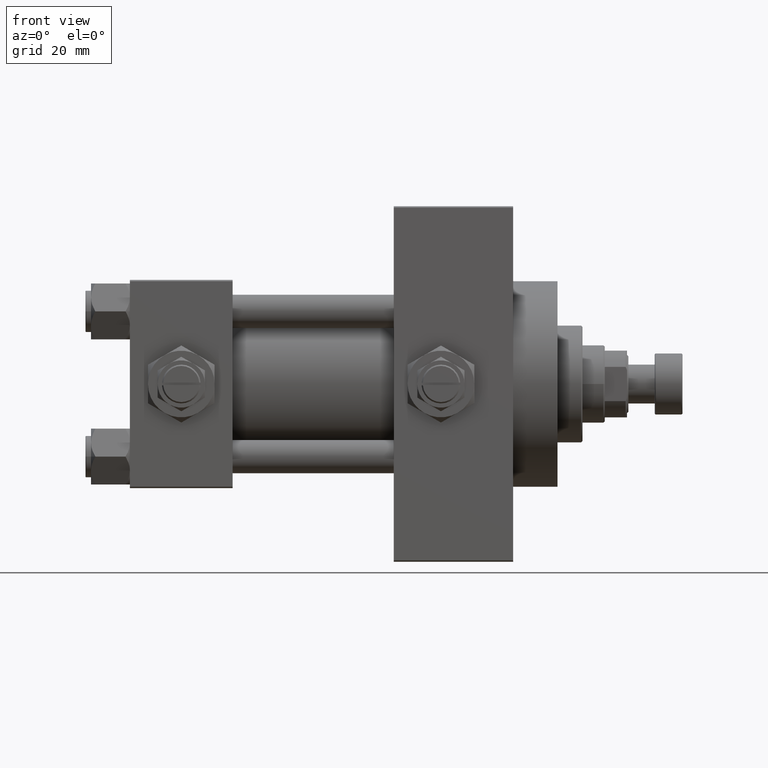
[diagram: clean part render]
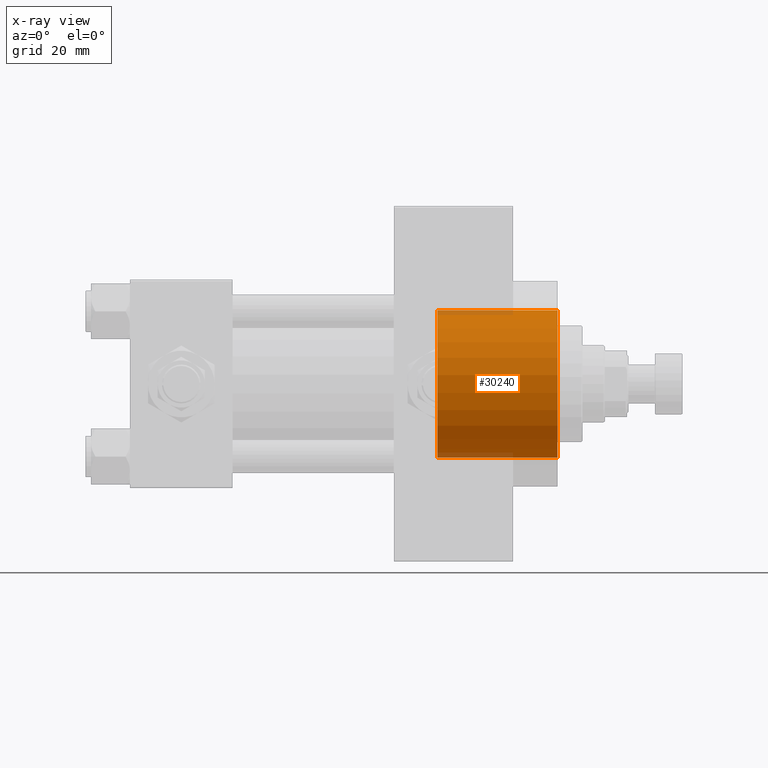
[diagram: x-ray — body ghosted, one internal face saturated and labeled with its STEP entity id]
A machine part, front view, then the same camera in x-ray: the body is ghosted and one INTERNAL B-rep face — a face not visible from any outside direction — is saturated and labeled: STEP entity #30240.
In plain terms, the highlighted cylindrical surface (partial cylindrical patch) has radius 26.5 mm, axis along (-1, 0, 0).
Its self-contained STEP definition (entity closure, byte-faithful):
#48 = CARTESIAN_POINT ( 'NONE',  ( 0.000000000000000000, 0.000000000000000000, 0.000000000000000000 ) ) ;
#622 = EDGE_CURVE ( 'NONE', #19926, #49761, #5164, .T. ) ;
#2600 = DIRECTION ( 'NONE',  ( -1.000000000000000000, 0.000000000000000000, 0.000000000000000000 ) ) ;
#5078 = CARTESIAN_POINT ( 'NONE',  ( -26.50000000000000355, 0.000000000000000000, 0.000000000000000000 ) ) ;
#5164 = LINE ( 'NONE', #36109, #29520 ) ;
#7586 = AXIS2_PLACEMENT_3D ( 'NONE', #21459, #36817, #2600 ) ;
#12974 = CARTESIAN_POINT ( 'NONE',  ( 0.000000000000000000, 0.000000000000000000, 43.25999999999999801 ) ) ;
#14064 = ORIENTED_EDGE ( 'NONE', *, *, #622, .F. ) ;
#14676 = CIRCLE ( 'NONE', #33159, 26.50000000000000355 ) ;
#14902 = CARTESIAN_POINT ( 'NONE',  ( 26.50000000000000355, 3.245314017740486554E-15, 43.25999999999999801 ) ) ;
#16675 = CIRCLE ( 'NONE', #23108, 26.50000000000000355 ) ;
#16777 = ORIENTED_EDGE ( 'NONE', *, *, #23162, .T. ) ;
#19926 = VERTEX_POINT ( 'NONE', #34142 ) ;
#20501 = DIRECTION ( 'NONE',  ( 1.000000000000000000, 0.000000000000000000, 0.000000000000000000 ) ) ;
#20504 = DIRECTION ( 'NONE',  ( -0.000000000000000000, -0.000000000000000000, -1.000000000000000000 ) ) ;
#20961 = CYLINDRICAL_SURFACE ( 'NONE', #7586, 26.50000000000000355 ) ;
#21459 = CARTESIAN_POINT ( 'NONE',  ( 0.000000000000000000, 0.000000000000000000, 43.25999999999999801 ) ) ;
#23108 = AXIS2_PLACEMENT_3D ( 'NONE', #12974, #32090, #20501 ) ;
#23162 = EDGE_CURVE ( 'NONE', #29570, #49761, #14676, .T. ) ;
#27932 = DIRECTION ( 'NONE',  ( 1.000000000000000000, 0.000000000000000000, 0.000000000000000000 ) ) ;
#28370 = LINE ( 'NONE', #36672, #31068 ) ;
#28517 = EDGE_LOOP ( 'NONE', ( #33659, #36411, #16777, #14064 ) ) ;
#29520 = VECTOR ( 'NONE', #20504, 1000.000000000000000 ) ;
#29570 = VERTEX_POINT ( 'NONE', #47259 ) ;
#30240 = ADVANCED_FACE ( 'NONE', ( #32791 ), #20961, .T. ) ;
#31068 = VECTOR ( 'NONE', #35921, 1000.000000000000000 ) ;
#32090 = DIRECTION ( 'NONE',  ( 0.000000000000000000, 0.000000000000000000, 1.000000000000000000 ) ) ;
#32791 = FACE_OUTER_BOUND ( 'NONE', #28517, .T. ) ;
#33159 = AXIS2_PLACEMENT_3D ( 'NONE', #48, #39265, #27932 ) ;
#33659 = ORIENTED_EDGE ( 'NONE', *, *, #48768, .F. ) ;
#34142 = CARTESIAN_POINT ( 'NONE',  ( -26.50000000000000355, 0.000000000000000000, 43.25999999999999801 ) ) ;
#35876 = VERTEX_POINT ( 'NONE', #14902 ) ;
#35921 = DIRECTION ( 'NONE',  ( -0.000000000000000000, -0.000000000000000000, -1.000000000000000000 ) ) ;
#36109 = CARTESIAN_POINT ( 'NONE',  ( -26.50000000000000355, 0.000000000000000000, 43.25999999999999801 ) ) ;
#36411 = ORIENTED_EDGE ( 'NONE', *, *, #37151, .T. ) ;
#36672 = CARTESIAN_POINT ( 'NONE',  ( 26.50000000000000355, 3.245314017740486554E-15, 43.25999999999999801 ) ) ;
#36817 = DIRECTION ( 'NONE',  ( -0.000000000000000000, -0.000000000000000000, -1.000000000000000000 ) ) ;
#37151 = EDGE_CURVE ( 'NONE', #35876, #29570, #28370, .T. ) ;
#39265 = DIRECTION ( 'NONE',  ( 0.000000000000000000, 0.000000000000000000, 1.000000000000000000 ) ) ;
#47259 = CARTESIAN_POINT ( 'NONE',  ( 26.50000000000000355, 3.245314017740486554E-15, 0.000000000000000000 ) ) ;
#48768 = EDGE_CURVE ( 'NONE', #35876, #19926, #16675, .T. ) ;
#49761 = VERTEX_POINT ( 'NONE', #5078 ) ;